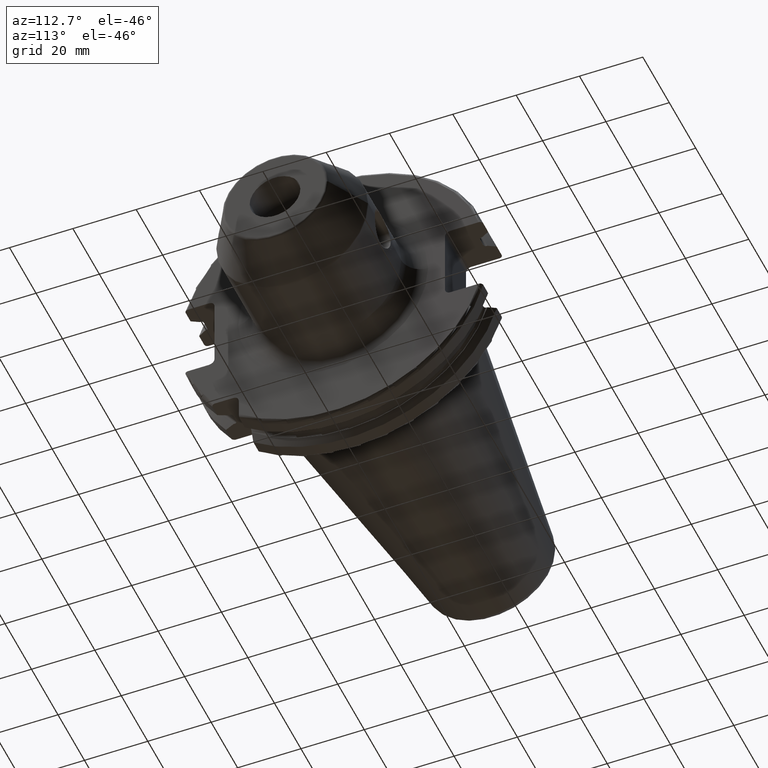
[diagram: clean part render]
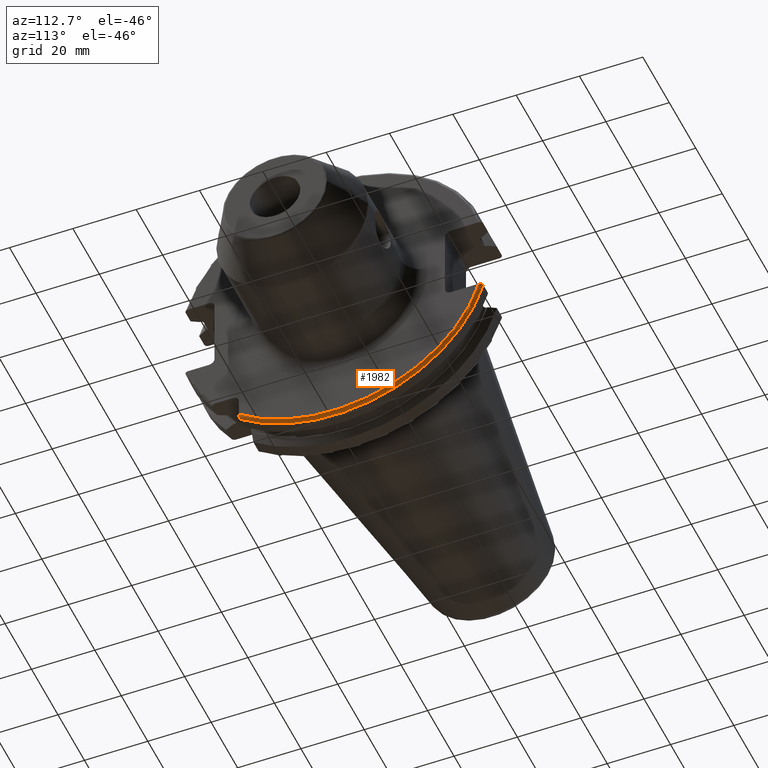
[diagram: same view with one face highlighted and labeled with its STEP entity id]
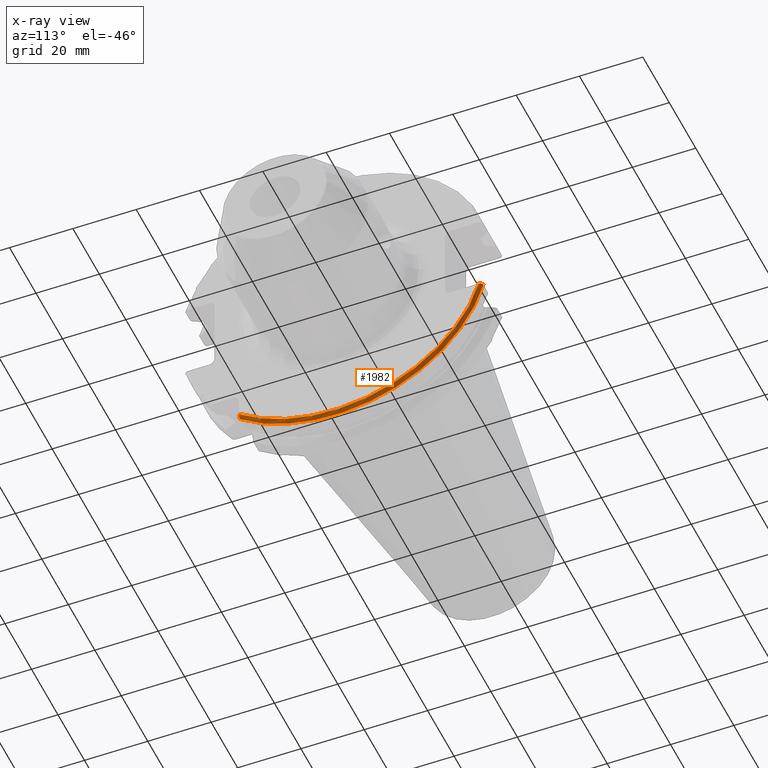
[diagram: x-ray of the same camera — body ghosted, the highlighted face saturated]
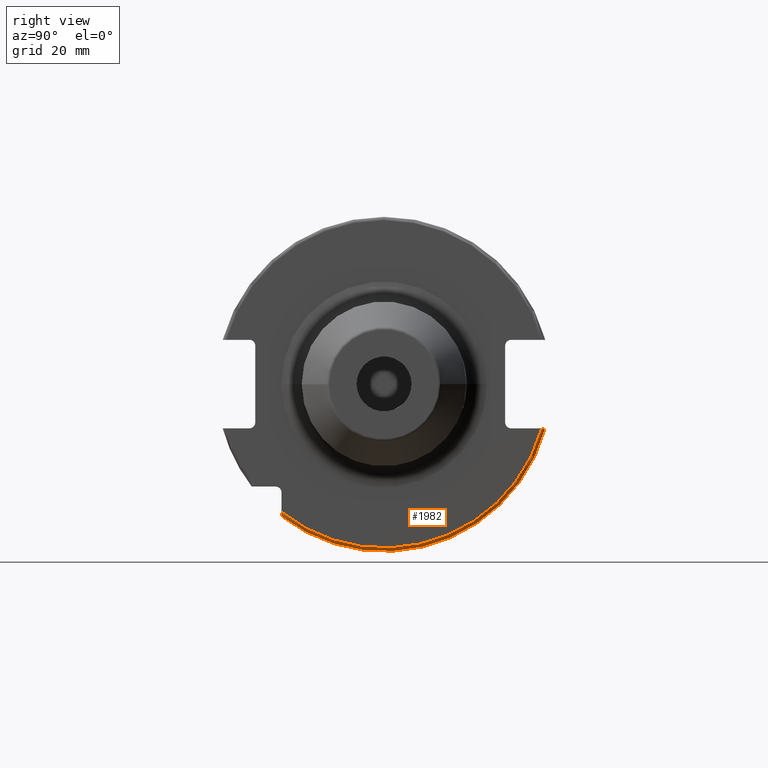
[diagram: same view with one face highlighted and labeled with its STEP entity id]
A machine part, auxiliary view. The second image highlights one B-rep face of the part: STEP entity #1982.
The next image is the same camera in x-ray: the body ghosted, the highlighted face saturated — about 0% of this face is hidden behind the body in this view.
A second angle (right view) of the same face is appended — the face is thin or edge-on in the first view.
In plain terms, the highlighted toroidal blend (fillet) surface has major radius 47.7375 mm and minor (blend) radius 1 mm.
Its self-contained STEP definition (entity closure, byte-faithful):
#204=CARTESIAN_POINT('',(1.805E1,4.699929686974E1,-1.29E1));
#205=CARTESIAN_POINT('',(1.812676342368E1,4.699929686974E1,-1.29E1));
#206=CARTESIAN_POINT('',(1.827575329770E1,4.698147245914E1,-1.29E1));
#207=CARTESIAN_POINT('',(1.849056832427E1,4.690313408822E1,-1.29E1));
#208=CARTESIAN_POINT('',(1.868190698842E1,4.677722381974E1,-1.29E1));
#209=CARTESIAN_POINT('',(1.884050497536E1,4.661134760606E1,-1.29E1));
#210=CARTESIAN_POINT('',(1.895953365851E1,4.641358752589E1,-1.29E1));
#211=CARTESIAN_POINT('',(1.903320906929E1,4.619315655817E1,-1.29E1));
#212=CARTESIAN_POINT('',(1.905E1,4.604021961607E1,-1.29E1));
#213=CARTESIAN_POINT('',(1.905E1,4.596149373389E1,-1.29E1));
#215=CARTESIAN_POINT('',(1.905E1,-2.985E1,-3.725381062724E1));
#216=CARTESIAN_POINT('',(1.905E1,-2.985E1,-3.738469466089E1));
#217=CARTESIAN_POINT('',(1.902018122037E1,-2.985E1,-3.763003230112E1));
#218=CARTESIAN_POINT('',(1.889737682100E1,-2.985E1,-3.796247242770E1));
#219=CARTESIAN_POINT('',(1.872069975737E1,-2.985E1,-3.821853261177E1));
#220=CARTESIAN_POINT('',(1.851107723549E1,-2.985E1,-3.839881428419E1));
#221=CARTESIAN_POINT('',(1.828305662300E1,-2.985E1,-3.850407117903E1));
#222=CARTESIAN_POINT('',(1.812863534913E1,-2.985E1,-3.852689198793E1));
#223=CARTESIAN_POINT('',(1.805E1,-2.985E1,-3.852689198793E1));
#225=CARTESIAN_POINT('',(1.905E1,0.E0,0.E0));
#226=DIRECTION('',(-1.E0,0.E0,0.E0));
#227=DIRECTION('',(0.E0,9.627964123359E-1,-2.702278083268E-1));
#228=AXIS2_PLACEMENT_3D('',#225,#226,#227);
#834=CARTESIAN_POINT('',(1.805E1,0.E0,0.E0));
#835=DIRECTION('',(-1.E0,0.E0,0.E0));
#836=DIRECTION('',(0.E0,9.643354064066E-1,-2.646832521159E-1));
#837=AXIS2_PLACEMENT_3D('',#834,#835,#836);
#1538=CARTESIAN_POINT('',(1.805E1,4.699929686974E1,-1.29E1));
#1539=VERTEX_POINT('',#1538);
#1551=VERTEX_POINT('',#213);
#1571=CARTESIAN_POINT('',(1.905E1,-2.985E1,-3.725381062724E1));
#1572=VERTEX_POINT('',#1571);
#1573=CARTESIAN_POINT('',(1.805E1,-2.985E1,-3.852689198793E1));
#1574=VERTEX_POINT('',#1573);
#1968=CARTESIAN_POINT('',(1.805E1,0.E0,0.E0));
#1969=DIRECTION('',(1.E0,0.E0,0.E0));
#1970=DIRECTION('',(0.E0,-1.E0,0.E0));
#1971=AXIS2_PLACEMENT_3D('',#1968,#1969,#1970);
#1972=TOROIDAL_SURFACE('',#1971,4.77375E1,1.E0);
#1974=ORIENTED_EDGE('',*,*,#1973,.F.);
#1976=ORIENTED_EDGE('',*,*,#1975,.T.);
#1978=ORIENTED_EDGE('',*,*,#1977,.F.);
#1979=ORIENTED_EDGE('',*,*,#1882,.F.);
#1980=EDGE_LOOP('',(#1974,#1976,#1978,#1979));
#1981=FACE_OUTER_BOUND('',#1980,.F.);
#1982=ADVANCED_FACE('',(#1981),#1972,.T.);
#214=B_SPLINE_CURVE_WITH_KNOTS('',3,(#204,#205,#206,#207,#208,#209,#210,#211,
#212,#213),.UNSPECIFIED.,.F.,.F.,(4,1,1,1,1,1,1,4),(0.E0,1.428571428571E-1,
2.857142857143E-1,4.285714285714E-1,5.714285714286E-1,7.142857142857E-1,
8.571428571429E-1,1.E0),.UNSPECIFIED.);
#224=B_SPLINE_CURVE_WITH_KNOTS('',3,(#215,#216,#217,#218,#219,#220,#221,#222,
#223),.UNSPECIFIED.,.F.,.F.,(4,1,1,1,1,1,4),(0.E0,1.666666666667E-1,
3.333333333333E-1,5.E-1,6.666666666667E-1,8.333333333333E-1,1.E0),
.UNSPECIFIED.);
#229=CIRCLE('',#228,4.77375E1);
#838=CIRCLE('',#837,4.87375E1);
#1882=EDGE_CURVE('',#1551,#1572,#229,.T.);
#1973=EDGE_CURVE('',#1539,#1551,#214,.T.);
#1975=EDGE_CURVE('',#1539,#1574,#838,.T.);
#1977=EDGE_CURVE('',#1572,#1574,#224,.T.);